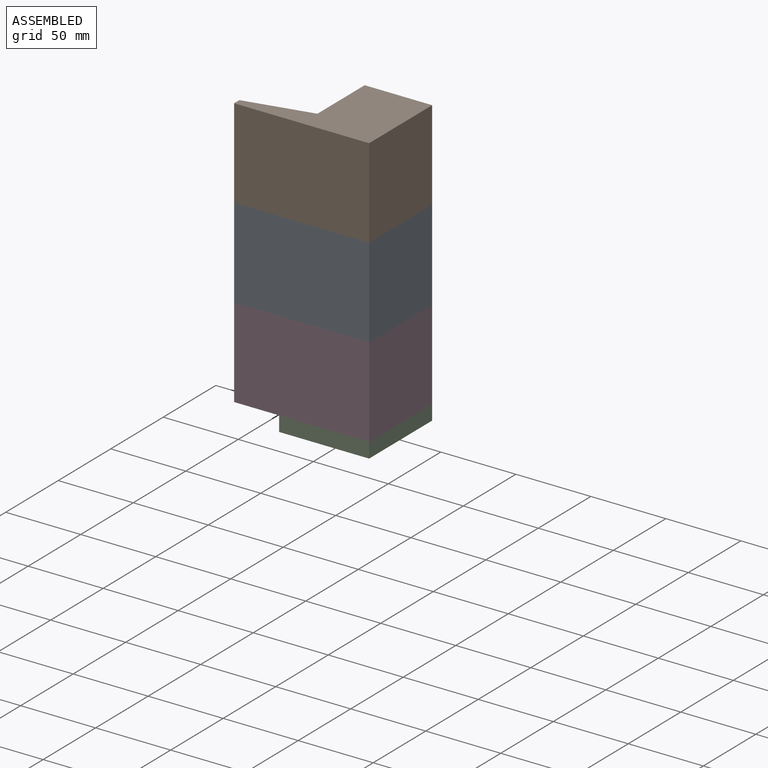
[diagram: assembled view]
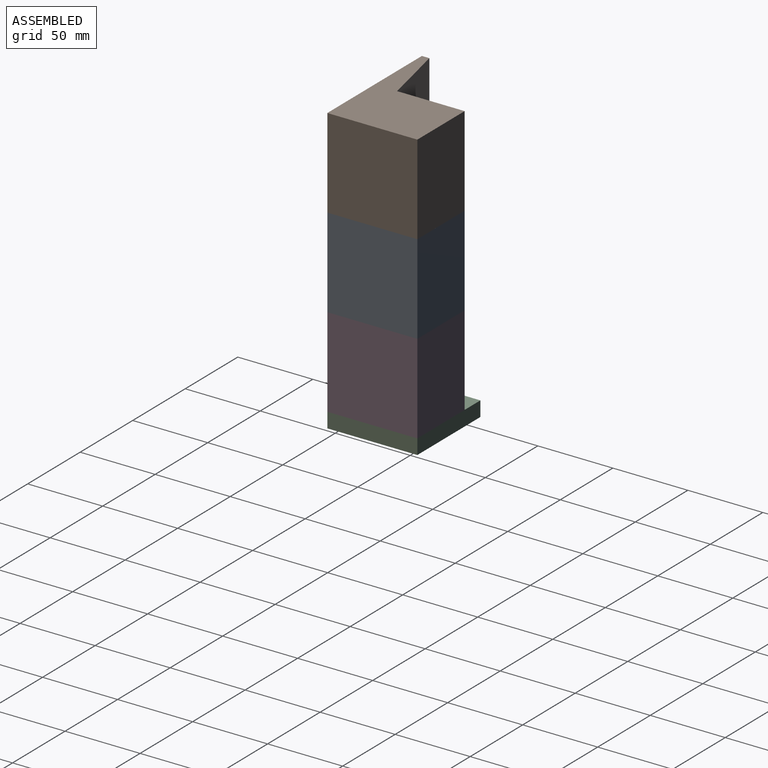
[diagram: assembled view, second angle]
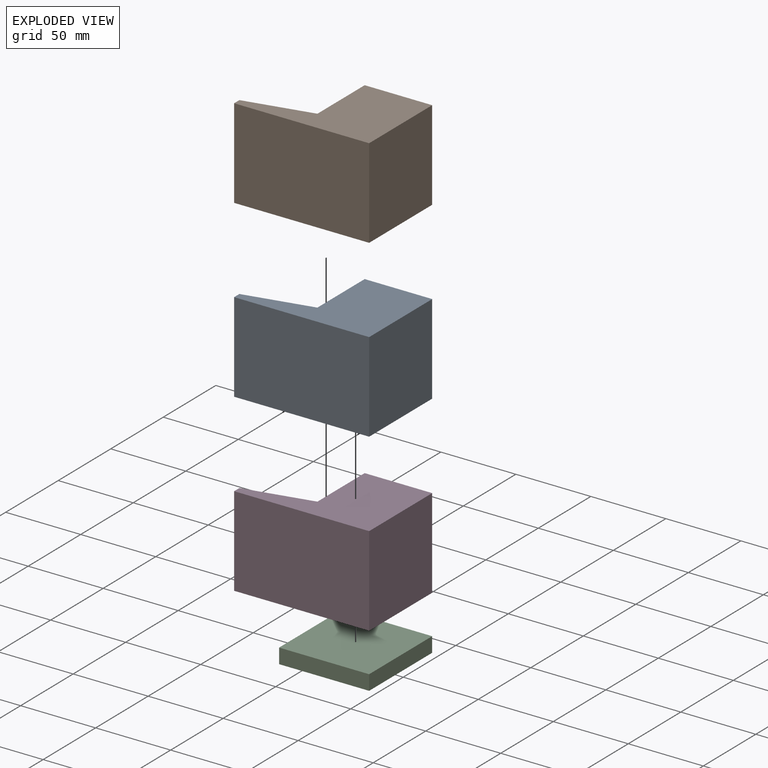
[diagram: exploded view]
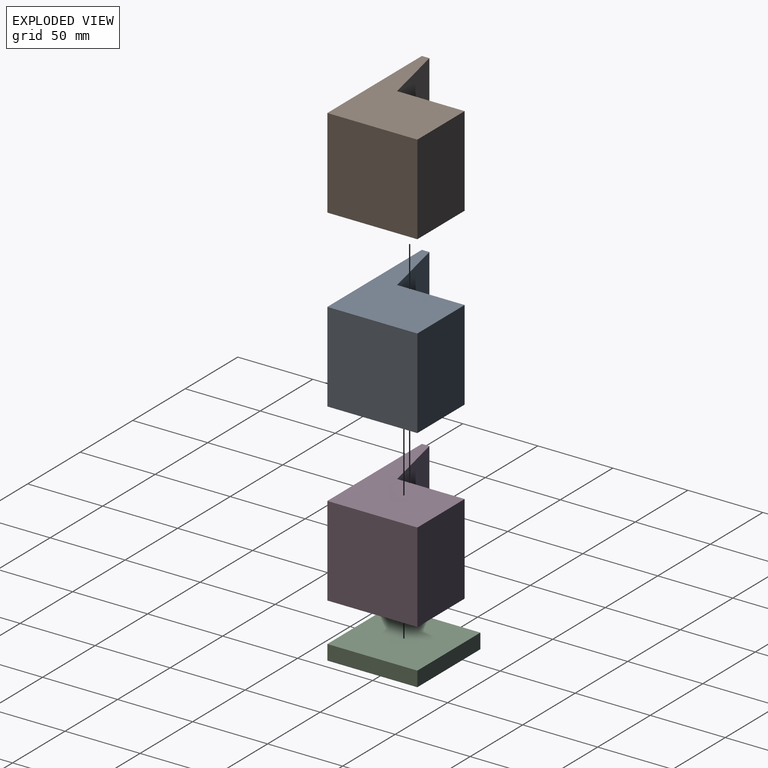
[diagram: exploded view, second angle]
ASSEMBLY  parts=4 mates=3
PART A: 8 faces, bbox 60x60x90 mm
  f0: plane 60x45mm, normal (0,0,1), area 2700mm2, adj f1,f5,f6,f7
  f1: plane 60x45mm, normal (-1,0,0), area 2700mm2, adj f0,f2,f6,f7
  f2: plane 60x60mm, normal (0,0,-1), area 3600mm2, adj f1,f3,f6,f7
  f3: plane 90x60mm, normal (1,0,0), area 5400mm2, adj f2,f4,f6,f7
  f4: plane 60x5mm, normal (0,0,1), area 300mm2, adj f3,f5,f6,f7
  f5: plane 60x45mm, normal (-0.98,0,0.22), area 2766mm2, adj f0,f4,f6,f7
  f6: plane 90x60.01mm, normal (0,-1,0), area 3150.6mm2, adj f0,f1,f2,f3,f4,f5
  f7: plane 90x60.01mm, normal (0,1,0), area 3150.6mm2, adj f0,f1,f2,f3,f4,f5
PART B: same geometry as A
PART C: 6 faces, bbox 60x10x60 mm
  f0: plane 60x10mm, normal (-1,0,0), area 600mm2, adj f1,f3,f4,f5
  f1: plane 60x10mm, normal (0,0,-1), area 600mm2, adj f0,f2,f4,f5
  f2: plane 60x10mm, normal (1,0,0), area 600mm2, adj f1,f3,f4,f5
  f3: plane 60x10mm, normal (0,0,1), area 600mm2, adj f0,f2,f4,f5
  f4: plane 60x60mm, normal (0,-1,0), area 3600mm2, adj f0,f1,f2,f3
  f5: plane 60x60mm, normal (0,1,0), area 3600mm2, adj f0,f1,f2,f3
PART D: same geometry as A
PLACE A rot(axis=(0.58,-0.58,-0.58),120deg) t=(-83.51,-15.91,35.55)mm
PLACE B rot(axis=(0.58,-0.58,-0.58),120deg) t=(-83.51,-15.91,95.55)mm
PLACE C rot(axis=(0,-0.71,0.71),180deg) t=(-33.04,2.46,-94.45)mm
PLACE D rot(axis=(0.58,-0.58,-0.58),120deg) t=(-83.51,-15.91,-24.45)mm
MATE revolute A.f6 <-> D.f7  axis (0,0,-1) through (-29.44,-4.43,-24.45)mm
MATE revolute B.f6 <-> A.f7  axis (0,0,-1) through (-29.44,-4.43,35.55)mm
MATE fastened D.f2 <-> C.f0  axis (1,0,0) through (-1.04,29.08,-84.45)mm
